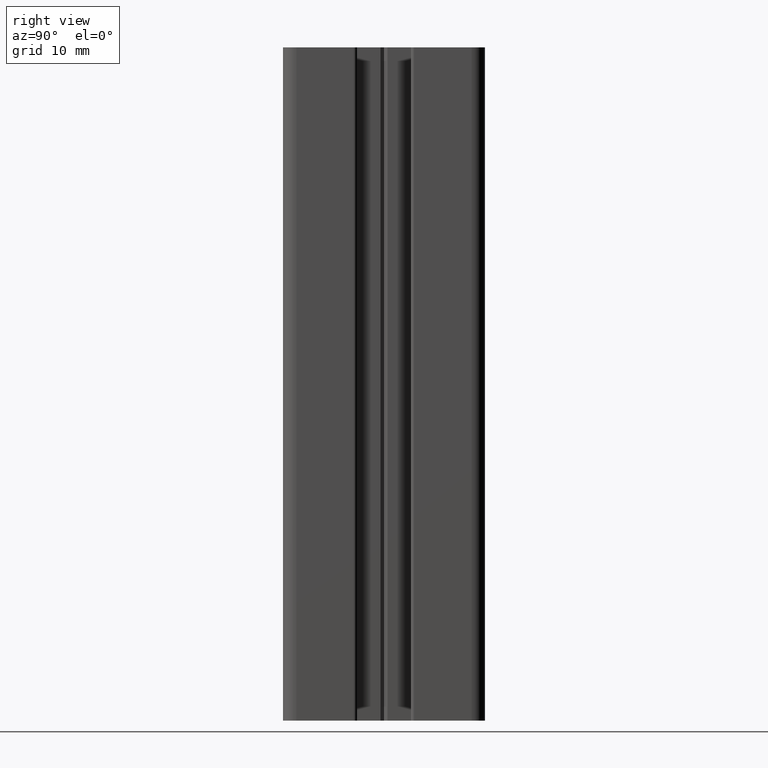
[diagram: clean part render]
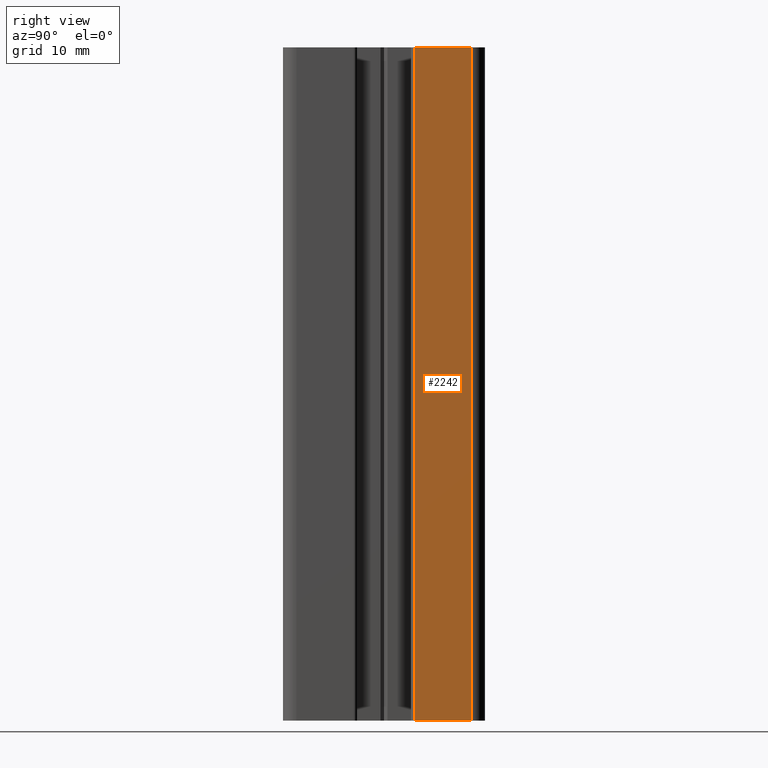
[diagram: same view with one face highlighted and labeled with its STEP entity id]
A machine part, right view. The second image highlights one B-rep face of the part: STEP entity #2242.
In plain terms, the highlighted planar face has unit normal (1, 0, 0).
Its self-contained STEP definition (entity closure, byte-faithful):
#235=FACE_OUTER_BOUND('',#347,.T.);
#347=EDGE_LOOP('',(#1808,#1809,#1810,#1811));
#476=LINE('',#3359,#728);
#601=LINE('',#3668,#853);
#602=LINE('',#3670,#854);
#603=LINE('',#3671,#855);
#728=VECTOR('',#2722,100.);
#853=VECTOR('',#3005,8.50000670523221);
#854=VECTOR('',#3006,100.);
#855=VECTOR('',#3007,8.50000670523221);
#972=VERTEX_POINT('',#3355);
#973=VERTEX_POINT('',#3357);
#1078=VERTEX_POINT('',#3667);
#1079=VERTEX_POINT('',#3669);
#1236=EDGE_CURVE('',#972,#973,#476,.T.);
#1389=EDGE_CURVE('',#1078,#973,#601,.T.);
#1390=EDGE_CURVE('',#1078,#1079,#602,.T.);
#1391=EDGE_CURVE('',#1079,#972,#603,.T.);
#1808=ORIENTED_EDGE('',*,*,#1236,.T.);
#1809=ORIENTED_EDGE('',*,*,#1389,.F.);
#1810=ORIENTED_EDGE('',*,*,#1390,.T.);
#1811=ORIENTED_EDGE('',*,*,#1391,.T.);
#2135=PLANE('',#2421);
#2242=ADVANCED_FACE('',(#235),#2135,.T.);
#2421=AXIS2_PLACEMENT_3D('',#3666,#3003,#3004);
#2722=DIRECTION('',(0.,0.,-1.));
#3003=DIRECTION('center_axis',(1.,2.97539770897479E-11,0.));
#3004=DIRECTION('ref_axis',(-2.97539770599542E-11,1.,0.));
#3005=DIRECTION('',(2.97539770897479E-11,-1.,0.));
#3006=DIRECTION('',(0.,0.,1.));
#3007=DIRECTION('',(2.97539770897479E-11,-1.,0.));
#3355=CARTESIAN_POINT('',(15.,4.4999932816655,100.));
#3357=CARTESIAN_POINT('',(15.,4.4999932816655,0.));
#3359=CARTESIAN_POINT('',(14.9999999994793,4.49999328168037,0.));
#3666=CARTESIAN_POINT('Origin',(15.,-12.9999999870676,0.));
#3667=CARTESIAN_POINT('',(14.9999999992264,12.9999999868977,0.));
#3668=CARTESIAN_POINT('',(14.9999999998066,-6.4999999931159,0.));
#3669=CARTESIAN_POINT('',(14.9999999992264,12.9999999868977,100.));
#3670=CARTESIAN_POINT('',(14.9999999992264,12.9999999868977,0.));
#3671=CARTESIAN_POINT('',(14.9999999998066,-6.4999999931159,100.));